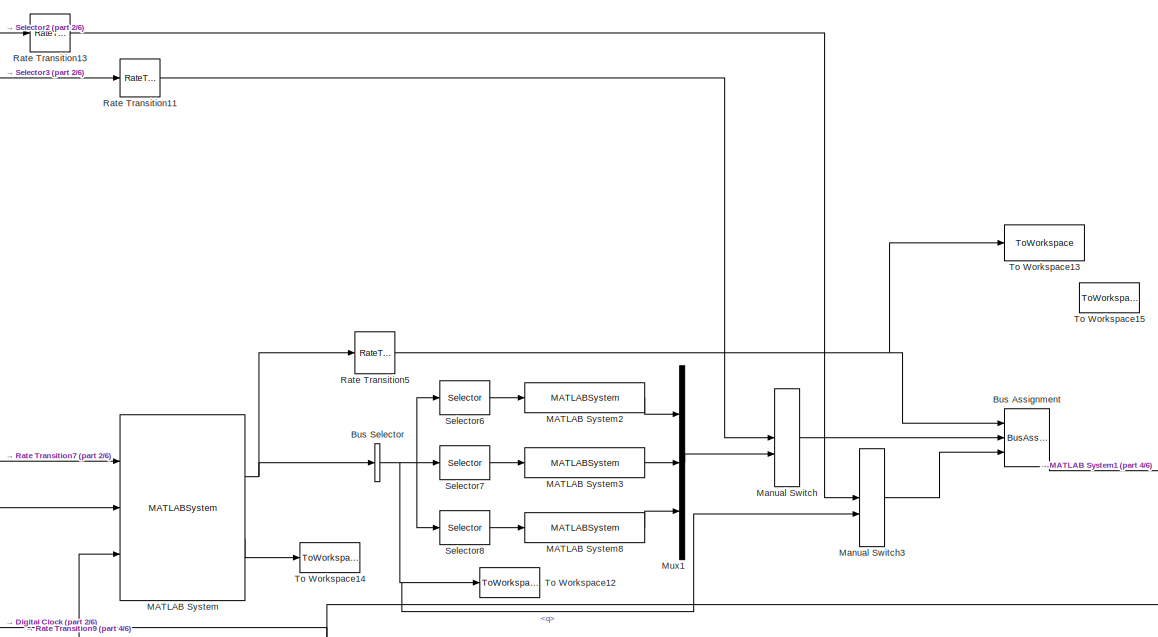
[diagram: root canvas - part 1/6, top center region]
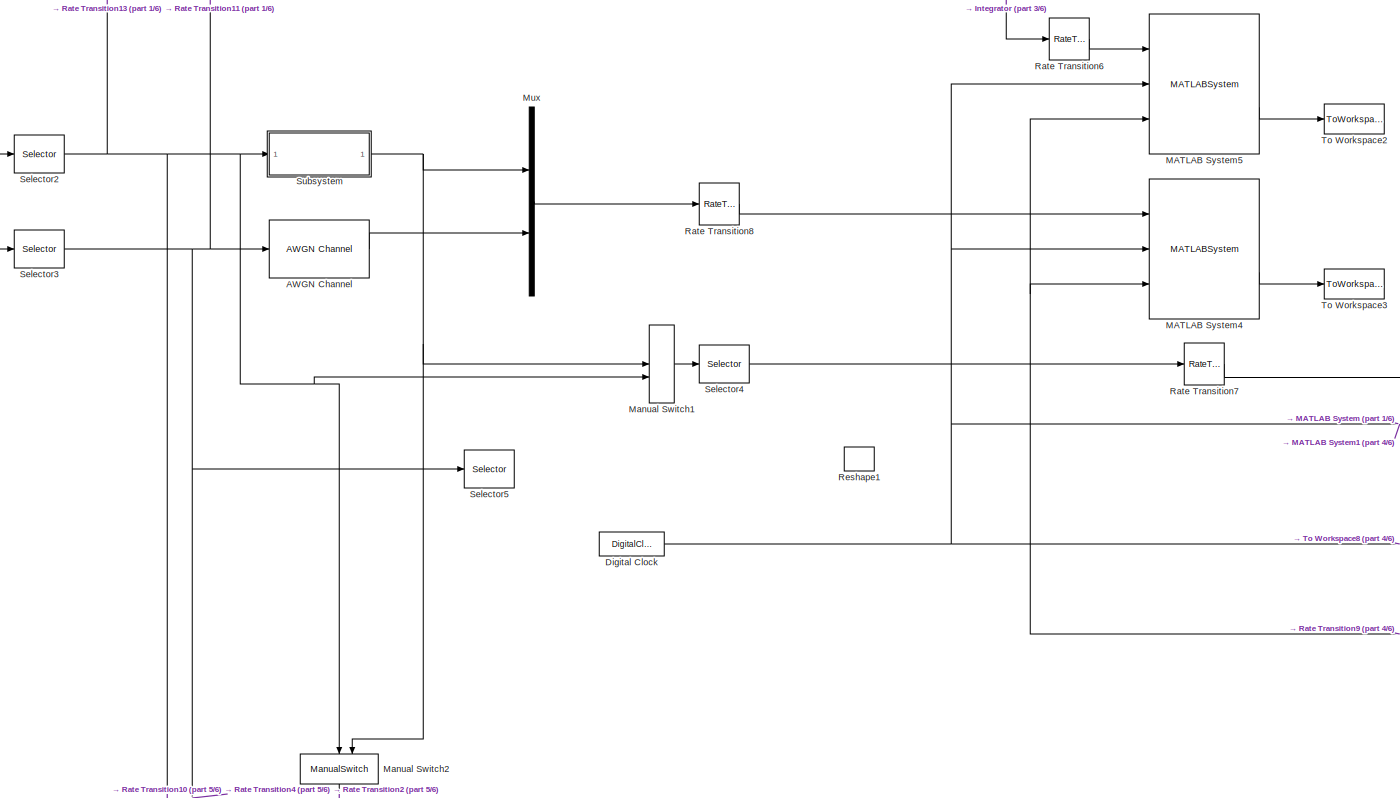
[diagram: root canvas - part 2/6, middle left region]
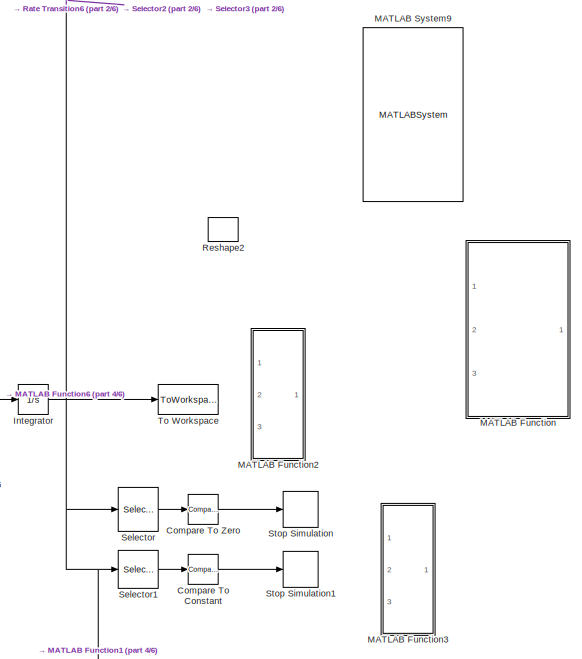
[diagram: root canvas - part 3/6, top right region]
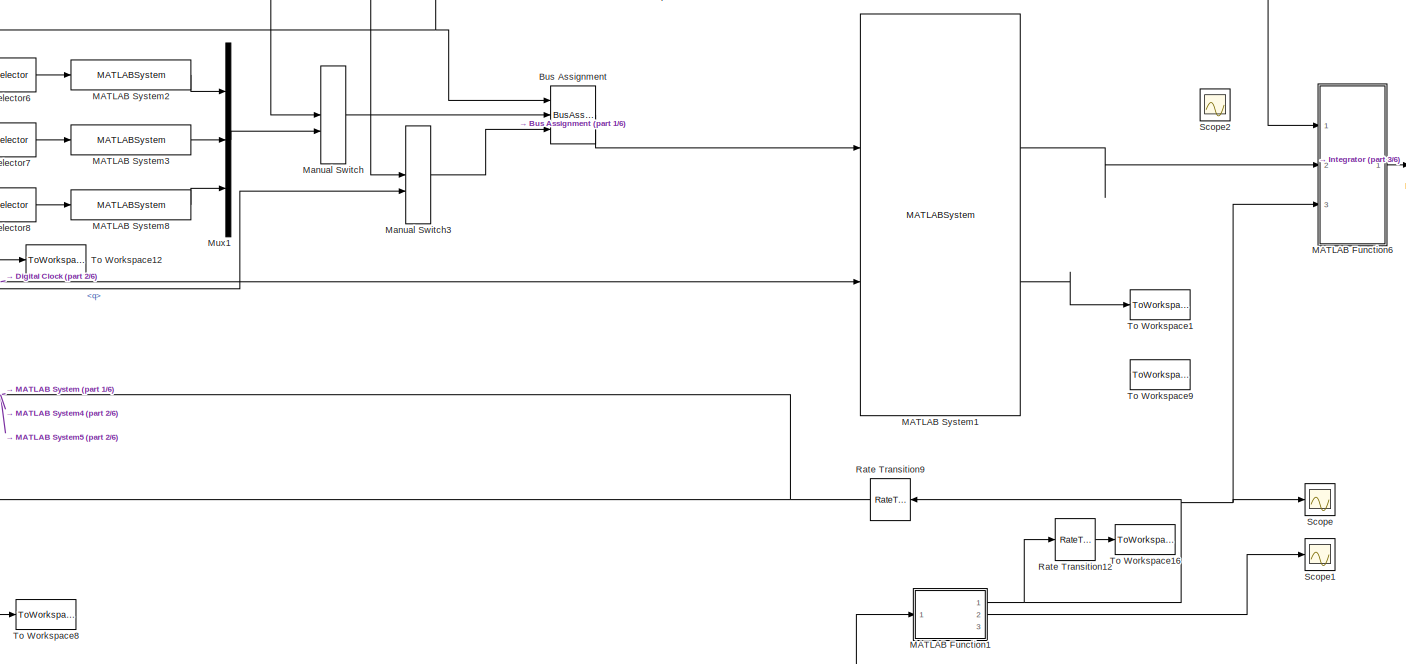
[diagram: root canvas - part 4/6, middle right region]
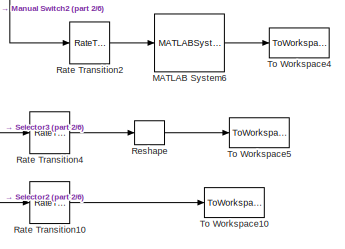
[diagram: root canvas - part 5/6, bottom left region]
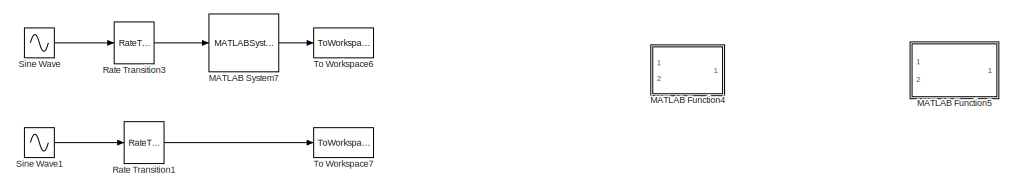
[diagram: root canvas - part 6/6, bottom center region]
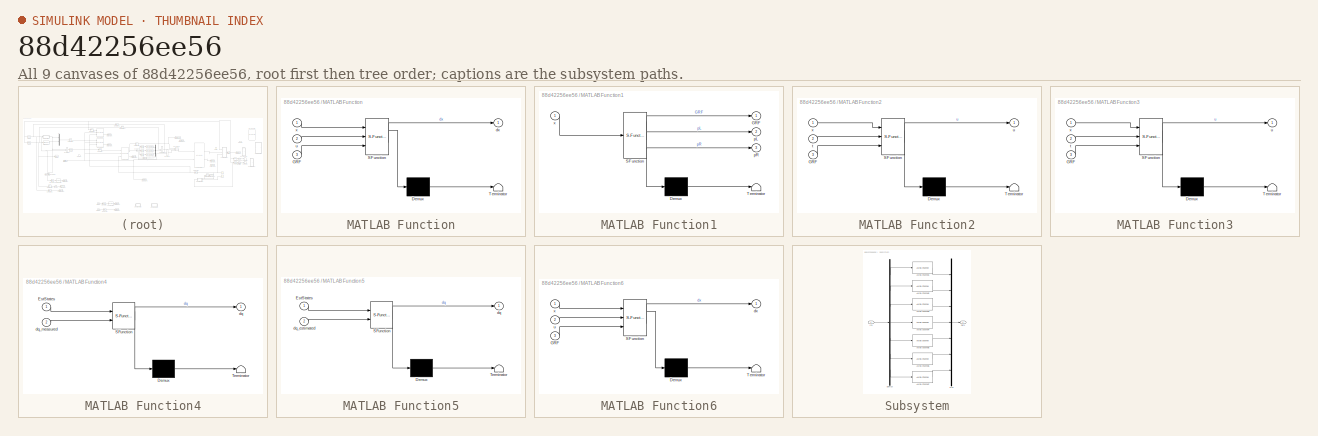
[diagram: thumbnail index - all 9 canvases of the model, root first then tree order]
MODEL slx_88d42256ee56
KIND model
CONFIG AbsTol = auto
CONFIG EnableMultiTasking = off
CONFIG FixedStep = auto
CONFIG InitFcn = SimInit\nPolyRegressionFilterInit\nCustomInit
CONFIG MaxStep = 0.001
CONFIG MinStep = auto
CONFIG RelTol = 1e-3
CONFIG SampleTimeConstraint = Unconstrained
CONFIG Solver = ode45
CONFIG SolverName = ode45
CONFIG StartTime = 0.0
CONFIG StopTime = 50
BLOCK [Reference] AWGN Channel  REF=commchan3/AWGN
Channel
  Ports = [1, 1]
  SourceBlock = commchan3/AWGN\nChannel
  SourceProductBaseCode = CM
  SourceProductName = Communications System Toolbox
  SourceType = AWGN Channel
  UserDataPersistent = on
BLOCK [BusAssignment] Bus Assignment
  AssignedSignals = dq,q
  Ports = [3, 1]
BLOCK [BusSelector] Bus Selector
  OutputAsBus = off
  OutputSignals = q
  Ports = [1, 1]
BLOCK [Reference] Compare To Constant  REF=simulink/Logic and Bit
Operations/Compare
To Constant
  Ports = [1, 1]
  SourceBlock = simulink/Logic and Bit\nOperations/Compare\nTo Constant
  SourceProductBaseCode = SL
  SourceProductName = Simulink
  SourceType = Compare To Constant
BLOCK [Reference] Compare To Zero  REF=simulink/Logic and Bit
Operations/Compare
To Zero
  Ports = [1, 1]
  SourceBlock = simulink/Logic and Bit\nOperations/Compare\nTo Zero
  SourceProductBaseCode = SL
  SourceProductName = Simulink
  SourceType = Compare To Zero
BLOCK [DigitalClock] Digital Clock
  SampleTime = sample_time
BLOCK [Integrator] Integrator
  InitialCondition = IC
  Ports = [1, 1]
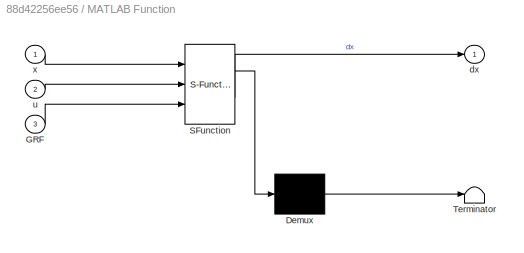
BLOCK [SubSystem] MATLAB Function
  Commented = on
  ErrorFcn = Stateflow.Translate.translate
  PermitHierarchicalResolution = ExplicitOnly
  Ports = [3, 1]
  RequestExecContextInheritance = off
  SFBlockType = MATLAB Function
  TreatAsAtomicUnit = on
  Variant = off
BLOCK [Demux] MATLAB Function/ Demux 
  Outputs = 1
  Ports = [1, 1]
BLOCK [S-Function] MATLAB Function/ SFunction 
  EnableBusSupport = on
  FunctionName = sf_sfun
  PortCounts = [3 2]
  Ports = [3, 2]
  SFcnIsStateOwnerBlock = off
  SFunctionDeploymentMode = off
  Tag = Stateflow S-Function FLWSim_noise_3 2
BLOCK [Terminator] MATLAB Function/ Terminator 
BLOCK [Inport] MATLAB Function/GRF
  IconDisplay = Port number
  Port = 3
BLOCK [Outport] MATLAB Function/dx
  IconDisplay = Port number
BLOCK [Inport] MATLAB Function/u
  IconDisplay = Port number
  Port = 2
BLOCK [Inport] MATLAB Function/x
  IconDisplay = Port number
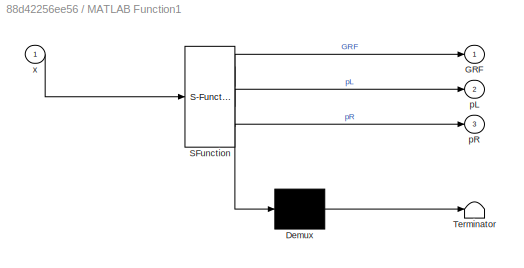
BLOCK [SubSystem] MATLAB Function1
  ErrorFcn = Stateflow.Translate.translate
  PermitHierarchicalResolution = ExplicitOnly
  Ports = [1, 3]
  RequestExecContextInheritance = off
  SFBlockType = MATLAB Function
  TreatAsAtomicUnit = on
  Variant = off
BLOCK [Demux] MATLAB Function1/ Demux 
  Outputs = 1
  Ports = [1, 1]
BLOCK [S-Function] MATLAB Function1/ SFunction 
  EnableBusSupport = on
  FunctionName = sf_sfun
  PortCounts = [1 4]
  Ports = [1, 4]
  SFcnIsStateOwnerBlock = off
  SFunctionDeploymentMode = off
  Tag = Stateflow S-Function FLWSim_noise_3 1
BLOCK [Terminator] MATLAB Function1/ Terminator 
BLOCK [Outport] MATLAB Function1/GRF
  IconDisplay = Port number
BLOCK [Outport] MATLAB Function1/pL
  IconDisplay = Port number
  Port = 2
BLOCK [Outport] MATLAB Function1/pR
  IconDisplay = Port number
  Port = 3
BLOCK [Inport] MATLAB Function1/x
  IconDisplay = Port number
BLOCK [SubSystem] MATLAB Function2
  Commented = on
  ErrorFcn = Stateflow.Translate.translate
  PermitHierarchicalResolution = ExplicitOnly
  Ports = [3, 1]
  RequestExecContextInheritance = off
  SFBlockType = MATLAB Function
  TreatAsAtomicUnit = on
  Variant = off
BLOCK [Demux] MATLAB Function2/ Demux 
  Outputs = 1
  Ports = [1, 1]
BLOCK [S-Function] MATLAB Function2/ SFunction 
  EnableBusSupport = on
  FunctionName = sf_sfun
  PortCounts = [3 2]
  Ports = [3, 2]
  SFcnIsStateOwnerBlock = off
  SFunctionDeploymentMode = off
  Tag = Stateflow S-Function FLWSim_noise_3 3
BLOCK [Terminator] MATLAB Function2/ Terminator 
BLOCK [Inport] MATLAB Function2/GRF
  IconDisplay = Port number
  Port = 3
BLOCK [Inport] MATLAB Function2/t
  IconDisplay = Port number
  Port = 2
BLOCK [Outport] MATLAB Function2/u
  IconDisplay = Port number
BLOCK [Inport] MATLAB Function2/x
  IconDisplay = Port number
BLOCK [SubSystem] MATLAB Function3
  Commented = on
  ErrorFcn = Stateflow.Translate.translate
  PermitHierarchicalResolution = ExplicitOnly
  Ports = [3, 1]
  RequestExecContextInheritance = off
  SFBlockType = MATLAB Function
  TreatAsAtomicUnit = on
  Variant = off
BLOCK [Demux] MATLAB Function3/ Demux 
  Outputs = 1
  Ports = [1, 1]
BLOCK [S-Function] MATLAB Function3/ SFunction 
  EnableBusSupport = on
  FunctionName = sf_sfun
  PortCounts = [3 2]
  Ports = [3, 2]
  SFcnIsStateOwnerBlock = off
  SFunctionDeploymentMode = off
  Tag = Stateflow S-Function FLWSim_noise_3 4
BLOCK [Terminator] MATLAB Function3/ Terminator 
BLOCK [Inport] MATLAB Function3/GRF
  IconDisplay = Port number
  Port = 3
BLOCK [Inport] MATLAB Function3/t
  IconDisplay = Port number
  Port = 2
BLOCK [Outport] MATLAB Function3/u
  IconDisplay = Port number
BLOCK [Inport] MATLAB Function3/x
  IconDisplay = Port number
BLOCK [SubSystem] MATLAB Function4
  Commented = on
  ErrorFcn = Stateflow.Translate.translate
  PermitHierarchicalResolution = ExplicitOnly
  Ports = [2, 1]
  RequestExecContextInheritance = off
  SFBlockType = MATLAB Function
  TreatAsAtomicUnit = on
  Variant = off
BLOCK [Demux] MATLAB Function4/ Demux 
  Outputs = 1
  Ports = [1, 1]
BLOCK [S-Function] MATLAB Function4/ SFunction 
  EnableBusSupport = on
  FunctionName = sf_sfun
  PortCounts = [2 2]
  Ports = [2, 2]
  SFcnIsStateOwnerBlock = off
  SFunctionDeploymentMode = off
  Tag = Stateflow S-Function FLWSim_noise_3 5
BLOCK [Terminator] MATLAB Function4/ Terminator 
BLOCK [Inport] MATLAB Function4/EstStates
  IconDisplay = Port number
BLOCK [Outport] MATLAB Function4/dq
  IconDisplay = Port number
BLOCK [Inport] MATLAB Function4/dq_measured
  IconDisplay = Port number
  Port = 2
BLOCK [SubSystem] MATLAB Function5
  Commented = on
  ErrorFcn = Stateflow.Translate.translate
  PermitHierarchicalResolution = ExplicitOnly
  Ports = [2, 1]
  RequestExecContextInheritance = off
  SFBlockType = MATLAB Function
  TreatAsAtomicUnit = on
  Variant = off
BLOCK [Demux] MATLAB Function5/ Demux 
  Outputs = 1
  Ports = [1, 1]
BLOCK [S-Function] MATLAB Function5/ SFunction 
  EnableBusSupport = on
  FunctionName = sf_sfun
  PortCounts = [2 2]
  Ports = [2, 2]
  SFcnIsStateOwnerBlock = off
  SFunctionDeploymentMode = off
  Tag = Stateflow S-Function FLWSim_noise_3 6
BLOCK [Terminator] MATLAB Function5/ Terminator 
BLOCK [Inport] MATLAB Function5/EstStates
  IconDisplay = Port number
BLOCK [Outport] MATLAB Function5/dq
  IconDisplay = Port number
BLOCK [Inport] MATLAB Function5/dq_estimated
  IconDisplay = Port number
  Port = 2
BLOCK [SubSystem] MATLAB Function6
  ErrorFcn = Stateflow.Translate.translate
  PermitHierarchicalResolution = ExplicitOnly
  Ports = [3, 1]
  RequestExecContextInheritance = off
  SFBlockType = MATLAB Function
  TreatAsAtomicUnit = on
  Variant = off
BLOCK [Demux] MATLAB Function6/ Demux 
  Outputs = 1
  Ports = [1, 1]
BLOCK [S-Function] MATLAB Function6/ SFunction 
  EnableBusSupport = on
  FunctionName = sf_sfun
  PortCounts = [3 2]
  Ports = [3, 2]
  SFcnIsStateOwnerBlock = off
  SFunctionDeploymentMode = off
  Tag = Stateflow S-Function FLWSim_noise_3 7
BLOCK [Terminator] MATLAB Function6/ Terminator 
BLOCK [Inport] MATLAB Function6/GRF
  IconDisplay = Port number
  Port = 3
BLOCK [Outport] MATLAB Function6/dx
  IconDisplay = Port number
BLOCK [Inport] MATLAB Function6/u
  IconDisplay = Port number
  Port = 2
BLOCK [Inport] MATLAB Function6/x
  IconDisplay = Port number
BLOCK [MATLABSystem] MATLAB System
  MaskDisplay = disp('StateEstimator_1');\nport_label('input',1,'q_measured');\nport_label('input',2,'t');\nport_label('input',3,'GRF');\nport_label('output',1,'EstStates');\nport_label('output',2,'q');
  MaskType = StateEstimator_1
  Ports = [3, 2]
  SimulateUsing = Interpreted execution
  System = StateEstimator_1
  T = 0.3
BLOCK [MATLABSystem] MATLAB System1
  MaskDisplay = disp('FLW_Controller_5');\nport_label('input',1,'EstStates');\nport_label('input',2,'t');\nport_label('output',1,'u');\nport_label('output',2,'Data');
  MaskType = FLW_Controller_5
  Ports = [2, 2]
  RegressFilterHistoryLength = history_length
  SimulateUsing = Interpreted execution
  System = FLW_Controller_5
  T = 0.3
  T_sample = sample_time
  cov_dq_estimated = cov_dq_estimated
  cov_q_measured = cov_q_measured
BLOCK [MATLABSystem] MATLAB System2
  MaskDisplay = disp('PolyRegressionFilter');\nport_label('input',1,'q');\nport_label('output',1,'dq');
  MaskType = PolyRegressionFilter
  Ports = [1, 1]
  SimulateUsing = Code generation
  System = PolyRegressionFilter
  delay = RegressionDelay
  dop = dop
  history_length = history_length
  sample_time = sample_time
  signal_dim = 2
BLOCK [MATLABSystem] MATLAB System3
  MaskDisplay = disp('PolyRegressionFilter');\nport_label('input',1,'q');\nport_label('output',1,'dq');
  MaskType = PolyRegressionFilter
  Ports = [1, 1]
  SimulateUsing = Code generation
  System = PolyRegressionFilter
  delay = RegressionDelay
  dop = dop
  history_length = history_length
  sample_time = sample_time
  signal_dim = 1
BLOCK [MATLABSystem] MATLAB System4
  Commented = on
  MaskDisplay = disp('FLW_Controller_3');\nport_label('input',1,'x');\nport_label('input',2,'t');\nport_label('input',3,'GRF');\nport_label('output',1,'u');\nport_label('output',2,'Data');
  MaskType = FLW_Controller_3
  Ports = [3, 2]
  SimulateUsing = Code generation
  System = FLW_Controller_3
  T_sample = sample_time
  cov_dq = cov_dq_estimated
  cov_q = cov_q_measured
BLOCK [MATLABSystem] MATLAB System5
  Commented = on
  MaskDisplay = disp('FLW_Controller_3');\nport_label('input',1,'x');\nport_label('input',2,'t');\nport_label('input',3,'GRF');\nport_label('output',1,'u');\nport_label('output',2,'Data');
  MaskType = FLW_Controller_3
  Ports = [3, 2]
  SimulateUsing = Code generation
  System = FLW_Controller_3
  T_sample = sample_time
  cov_dq = cov_dq_estimated
  cov_q = cov_q_measured
BLOCK [MATLABSystem] MATLAB System6
  MaskDisplay = disp('PolyRegressionFilter');\nport_label('input',1,'q');\nport_label('output',1,'dq');
  MaskType = PolyRegressionFilter
  Ports = [1, 1]
  SimulateUsing = Code generation
  System = PolyRegressionFilter
  delay = RegressionDelay
  dop = dop
  history_length = history_length
  sample_time = sample_time
  signal_dim = 7
BLOCK [MATLABSystem] MATLAB System7
  MaskDisplay = disp('PolyRegressionFilter');\nport_label('input',1,'q');\nport_label('output',1,'dq');
  MaskType = PolyRegressionFilter
  Ports = [1, 1]
  SimulateUsing = Code generation
  System = PolyRegressionFilter
  delay = 20
  dop = dop
  history_length = history_length
  sample_time = sample_time
  signal_dim = 1
BLOCK [MATLABSystem] MATLAB System8
  MaskDisplay = disp('PolyRegressionFilter');\nport_label('input',1,'q');\nport_label('output',1,'dq');
  MaskType = PolyRegressionFilter
  Ports = [1, 1]
  SimulateUsing = Code generation
  System = PolyRegressionFilter
  delay = RegressionDelay
  dop = dop
  history_length = history_length
  sample_time = sample_time
  signal_dim = 4
BLOCK [MATLABSystem] MATLAB System9
  Commented = on
  MaskDisplay = disp('EOM');\nport_label('input',1,'x');\nport_label('input',2,'u');\nport_label('input',3,'GRF');\nport_label('output',1,'dx');
  MaskType = EOM
  Ports = [3, 1]
  SimulateUsing = Interpreted execution
  System = EOM
BLOCK [ManualSwitch] Manual Switch
BLOCK [ManualSwitch] Manual Switch1
  CurrentSetting = 0
BLOCK [ManualSwitch] Manual Switch2
BLOCK [ManualSwitch] Manual Switch3
BLOCK [Mux] Mux
  DisplayOption = bar
  Inputs = 2
  Ports = [2, 1]
BLOCK [Mux] Mux1
  DisplayOption = bar
  Inputs = 3
  Ports = [3, 1]
BLOCK [RateTransition] Rate Transition1
  OutPortSampleTime = sample_time
BLOCK [RateTransition] Rate Transition10
  OutPortSampleTime = sample_time
BLOCK [RateTransition] Rate Transition11
  OutPortSampleTime = sample_time
BLOCK [RateTransition] Rate Transition12
  OutPortSampleTime = sample_time
BLOCK [RateTransition] Rate Transition13
  OutPortSampleTime = sample_time
BLOCK [RateTransition] Rate Transition2
  OutPortSampleTime = sample_time
BLOCK [RateTransition] Rate Transition3
  OutPortSampleTime = sample_time
BLOCK [RateTransition] Rate Transition4
  OutPortSampleTime = sample_time
BLOCK [RateTransition] Rate Transition5
  OutPortSampleTime = sample_time
BLOCK [RateTransition] Rate Transition6
  OutPortSampleTime = sample_time
BLOCK [RateTransition] Rate Transition7
  OutPortSampleTime = sample_time
BLOCK [RateTransition] Rate Transition8
  OutPortSampleTime = sample_time
BLOCK [RateTransition] Rate Transition9
  OutPortSampleTime = sample_time
BLOCK [Reshape] Reshape
  OutputDimensionality = Column vector (2-D)
  Ports = [1, 1]
BLOCK [Reshape] Reshape1
  OutputDimensionality = Column vector (2-D)
  Ports = [1, 1]
BLOCK [Reshape] Reshape2
  Commented = on
  OutputDimensionality = Column vector (2-D)
  Ports = [1, 1]
BLOCK [Scope] Scope
  NumInputPorts = 1
  Ports = [1]
  ScopeSpecificationString = Simulink.scopes.TimeScopeBlockCfg('CurrentConfiguration', extmgr.ConfigurationSet(extmgr.Configuration('Core','General UI',true),extmgr.Configuration('Core','Source UI',true),extmgr.Configuration('Sources','WiredSimulink',true),extmgr.Configuration('Visuals','Time Domain',true,'SerializedDisplays',{struct('MinYLimReal','-3527.8342','MaxYLimReal','2836.7382','YLabelReal','','MinYLimMag','  0.00000'...<+1581ch>
BLOCK [Scope] Scope1
  NumInputPorts = 1
  Ports = [1]
  ScopeSpecificationString = Simulink.scopes.TimeScopeBlockCfg('CurrentConfiguration', extmgr.ConfigurationSet(extmgr.Configuration('Core','General UI',true),extmgr.Configuration('Core','Source UI',true),extmgr.Configuration('Sources','WiredSimulink',true,'DataLoggingVariableName','ScopeData1'),extmgr.Configuration('Visuals','Time Domain',true,'SerializedDisplays',{struct('MinYLimReal','-126.86849','MaxYLimReal','50.32414','Y...<+1484ch>
BLOCK [Scope] Scope2
  NumInputPorts = 1
  Ports = [1]
  ScopeSpecificationString = Simulink.scopes.TimeScopeBlockCfg('CurrentConfiguration', extmgr.ConfigurationSet(extmgr.Configuration('Core','General UI',true),extmgr.Configuration('Core','Source UI',true),extmgr.Configuration('Sources','WiredSimulink',true,'DataLoggingVariableName','ScopeData2'),extmgr.Configuration('Visuals','Time Domain',true,'SerializedDisplays',{struct('MinYLimReal','-2453.87139','MaxYLimReal','1143.79313'...<+1531ch>
BLOCK [Selector] Selector
  IndexOptions = Index vector (dialog)
  Indices = [2]
  InputPortWidth = 14
  OutputSizes = 1
  Ports = [1, 1]
BLOCK [Selector] Selector1
  IndexOptions = Index vector (dialog)
  Indices = [8]
  InputPortWidth = 14
  OutputSizes = 1
  Ports = [1, 1]
BLOCK [Selector] Selector2
  IndexOptions = Index vector (dialog)
  Indices = [1:7]
  InputPortWidth = 14
  OutputSizes = 1
  Ports = [1, 1]
BLOCK [Selector] Selector3
  IndexOptions = Index vector (dialog)
  Indices = [8:14]
  InputPortWidth = 14
  OutputSizes = 1
  Ports = [1, 1]
BLOCK [Selector] Selector4
  IndexOptions = Index vector (dialog)
  Indices = [3:7]
  InputPortWidth = 7
  OutputSizes = 1
  Ports = [1, 1]
BLOCK [Selector] Selector5
  IndexOptions = Index vector (dialog)
  Indices = [3:7]
  InputPortWidth = 7
  OutputSizes = 1
  Ports = [1, 1]
BLOCK [Selector] Selector6
  IndexOptions = Index vector (dialog)
  Indices = [1:2]
  InputPortWidth = 7
  OutputSizes = 1
  Ports = [1, 1]
BLOCK [Selector] Selector7
  IndexOptions = Index vector (dialog)
  Indices = [3]
  InputPortWidth = 7
  OutputSizes = 1
  Ports = [1, 1]
BLOCK [Selector] Selector8
  IndexOptions = Index vector (dialog)
  Indices = [4:7]
  InputPortWidth = 7
  OutputSizes = 1
  Ports = [1, 1]
BLOCK [Sin] Sine Wave
  Frequency = 10
  Ports = [0, 1]
  SampleTime = 0
BLOCK [Sin] Sine Wave1
  Amplitude = 10
  Frequency = 10
  Phase = pi/2
  Ports = [0, 1]
  SampleTime = 0
BLOCK [Stop] Stop Simulation
BLOCK [Stop] Stop Simulation1
BLOCK [SubSystem] Subsystem
  Ports = [1, 1]
  RequestExecContextInheritance = off
  Variant = off
BLOCK [Reference] Subsystem/AWGN Channel1  REF=commchan3/AWGN
Channel
  Ports = [1, 1]
  SourceBlock = commchan3/AWGN\nChannel
  SourceProductBaseCode = CM
  SourceProductName = Communications System Toolbox
  SourceType = AWGN Channel
  UserDataPersistent = on
BLOCK [Reference] Subsystem/AWGN Channel2  REF=commchan3/AWGN
Channel
  Ports = [1, 1]
  SourceBlock = commchan3/AWGN\nChannel
  SourceProductBaseCode = CM
  SourceProductName = Communications System Toolbox
  SourceType = AWGN Channel
  UserDataPersistent = on
BLOCK [Reference] Subsystem/AWGN Channel3  REF=commchan3/AWGN
Channel
  Ports = [1, 1]
  SourceBlock = commchan3/AWGN\nChannel
  SourceProductBaseCode = CM
  SourceProductName = Communications System Toolbox
  SourceType = AWGN Channel
  UserDataPersistent = on
BLOCK [Reference] Subsystem/AWGN Channel4  REF=commchan3/AWGN
Channel
  Ports = [1, 1]
  SourceBlock = commchan3/AWGN\nChannel
  SourceProductBaseCode = CM
  SourceProductName = Communications System Toolbox
  SourceType = AWGN Channel
  UserDataPersistent = on
BLOCK [Reference] Subsystem/AWGN Channel5  REF=commchan3/AWGN
Channel
  Ports = [1, 1]
  SourceBlock = commchan3/AWGN\nChannel
  SourceProductBaseCode = CM
  SourceProductName = Communications System Toolbox
  SourceType = AWGN Channel
  UserDataPersistent = on
BLOCK [Reference] Subsystem/AWGN Channel6  REF=commchan3/AWGN
Channel
  Ports = [1, 1]
  SourceBlock = commchan3/AWGN\nChannel
  SourceProductBaseCode = CM
  SourceProductName = Communications System Toolbox
  SourceType = AWGN Channel
  UserDataPersistent = on
BLOCK [Reference] Subsystem/AWGN Channel7  REF=commchan3/AWGN
Channel
  Ports = [1, 1]
  SourceBlock = commchan3/AWGN\nChannel
  SourceProductBaseCode = CM
  SourceProductName = Communications System Toolbox
  SourceType = AWGN Channel
  UserDataPersistent = on
BLOCK [Demux] Subsystem/Demux
  DisplayOption = bar
  Outputs = 7
  Ports = [1, 7]
BLOCK [Inport] Subsystem/In1
  IconDisplay = Port number
BLOCK [Mux] Subsystem/Mux
  DisplayOption = bar
  Inputs = 7
  Ports = [7, 1]
BLOCK [Outport] Subsystem/Out1
  IconDisplay = Port number
BLOCK [ToWorkspace] To Workspace
  FixptAsFi = on
  MaxDataPoints = inf
  Ports = [1]
  SampleTime = -1
  Save2DSignal = 3-D array (concatenate along third dimension)
  VariableName = X_states
BLOCK [ToWorkspace] To Workspace1
  FixptAsFi = on
  MaxDataPoints = inf
  Ports = [1]
  SampleTime = -1
  Save2DSignal = 3-D array (concatenate along third dimension)
  SaveFormat = Timeseries
  VariableName = Data
BLOCK [ToWorkspace] To Workspace10
  FixptAsFi = on
  MaxDataPoints = inf
  Ports = [1]
  SampleTime = -1
  Save2DSignal = 3-D array (concatenate along third dimension)
  SaveFormat = Timeseries
  VariableName = true_q
BLOCK [ToWorkspace] To Workspace12
  FixptAsFi = on
  MaxDataPoints = inf
  Ports = [1]
  SampleTime = -1
  Save2DSignal = 3-D array (concatenate along third dimension)
  SaveFormat = Timeseries
  VariableName = test_q_2
BLOCK [ToWorkspace] To Workspace13
  FixptAsFi = on
  MaxDataPoints = inf
  Ports = [1]
  SampleTime = -1
  Save2DSignal = 3-D array (concatenate along third dimension)
  SaveFormat = Timeseries
  VariableName = EstStates
BLOCK [ToWorkspace] To Workspace14
  FixptAsFi = on
  MaxDataPoints = inf
  Ports = [1]
  SampleTime = -1
  Save2DSignal = 3-D array (concatenate along third dimension)
  SaveFormat = Timeseries
  VariableName = q_test1
BLOCK [ToWorkspace] To Workspace15
  FixptAsFi = on
  MaxDataPoints = inf
  Ports = [1]
  SampleTime = -1
  Save2DSignal = 3-D array (concatenate along third dimension)
  SaveFormat = Timeseries
  VariableName = q_test2
BLOCK [ToWorkspace] To Workspace16
  FixptAsFi = on
  MaxDataPoints = inf
  Ports = [1]
  SampleTime = -1
  Save2DSignal = 3-D array (concatenate along third dimension)
  SaveFormat = Timeseries
  VariableName = GRF
BLOCK [ToWorkspace] To Workspace2
  FixptAsFi = on
  MaxDataPoints = inf
  Ports = [1]
  SampleTime = -1
  Save2DSignal = 3-D array (concatenate along third dimension)
  SaveFormat = Timeseries
  VariableName = Data_perfect
BLOCK [ToWorkspace] To Workspace3
  FixptAsFi = on
  MaxDataPoints = inf
  Ports = [1]
  SampleTime = -1
  Save2DSignal = 3-D array (concatenate along third dimension)
  SaveFormat = Timeseries
  VariableName = Data_noise
BLOCK [ToWorkspace] To Workspace4
  FixptAsFi = on
  MaxDataPoints = inf
  Ports = [1]
  SampleTime = -1
  Save2DSignal = 3-D array (concatenate along third dimension)
  SaveFormat = Timeseries
  VariableName = test_dq
BLOCK [ToWorkspace] To Workspace5
  FixptAsFi = on
  MaxDataPoints = inf
  Ports = [1]
  SampleTime = -1
  Save2DSignal = 3-D array (concatenate along third dimension)
  SaveFormat = Timeseries
  VariableName = true_dq
BLOCK [ToWorkspace] To Workspace6
  FixptAsFi = on
  MaxDataPoints = inf
  Ports = [1]
  SampleTime = -1
  Save2DSignal = 3-D array (concatenate along third dimension)
  SaveFormat = Timeseries
  VariableName = test_dsine
BLOCK [ToWorkspace] To Workspace7
  FixptAsFi = on
  MaxDataPoints = inf
  Ports = [1]
  SampleTime = -1
  Save2DSignal = 3-D array (concatenate along third dimension)
  SaveFormat = Timeseries
  VariableName = true_dsine
BLOCK [ToWorkspace] To Workspace8
  FixptAsFi = on
  MaxDataPoints = inf
  Ports = [1]
  SampleTime = -1
  Save2DSignal = 2-D array (concatenate along first dimension)
  VariableName = time_seq
BLOCK [ToWorkspace] To Workspace9
  Commented = on
  FixptAsFi = on
  MaxDataPoints = inf
  Ports = [1]
  SampleTime = -1
  Save2DSignal = 3-D array (concatenate along third dimension)
  SaveFormat = Timeseries
  VariableName = origin_pos
LINE AWGN Channel:1 -> Mux:2
LINE Bus Assignment:1 -> MATLAB System1:1
NET Bus Selector:1 -> Manual Switch3:2, Selector6:1, Selector7:1, Selector8:1, To Workspace12:1
LINE Compare To Constant:1 -> Stop Simulation1:1
LINE Compare To Zero:1 -> Stop Simulation:1
NET Digital Clock:1 -> MATLAB System1:2, MATLAB System4:2, MATLAB System5:2, MATLAB System:2, To Workspace8:1
NET Integrator:1 -> MATLAB Function1:1, MATLAB Function6:1, Rate Transition6:1, Selector1:1, Selector2:1, Selector3:1, Selector:1, To Workspace:1
NET MATLAB Function1:1 -> MATLAB Function6:3, Rate Transition12:1, Rate Transition9:1, Scope:1
LINE MATLAB Function1:2 -> Scope1:1
LINE MATLAB Function6:1 -> Integrator:1
LINE MATLAB System1:1 -> MATLAB Function6:2
LINE MATLAB System1:2 -> To Workspace1:1
LINE MATLAB System2:1 -> Mux1:1
LINE MATLAB System3:1 -> Mux1:2
LINE MATLAB System4:2 -> To Workspace3:1
LINE MATLAB System5:2 -> To Workspace2:1
LINE MATLAB System6:1 -> To Workspace4:1
LINE MATLAB System7:1 -> To Workspace6:1
LINE MATLAB System8:1 -> Mux1:3
NET MATLAB System:1 -> Bus Selector:1, Rate Transition5:1
LINE MATLAB System:2 -> To Workspace14:1
LINE Manual Switch1:1 -> Selector4:1
LINE Manual Switch2:1 -> Rate Transition2:1
LINE Manual Switch3:1 -> Bus Assignment:3
LINE Manual Switch:1 -> Bus Assignment:2
LINE Mux1:1 -> Manual Switch:2
LINE Mux:1 -> Rate Transition8:1
LINE Rate Transition10:1 -> To Workspace10:1
LINE Rate Transition11:1 -> Manual Switch:1
LINE Rate Transition12:1 -> To Workspace16:1
LINE Rate Transition13:1 -> Manual Switch3:1
LINE Rate Transition1:1 -> To Workspace7:1
LINE Rate Transition2:1 -> MATLAB System6:1
LINE Rate Transition3:1 -> MATLAB System7:1
LINE Rate Transition4:1 -> Reshape:1
NET Rate Transition5:1 -> Bus Assignment:1, To Workspace13:1
LINE Rate Transition6:1 -> MATLAB System5:1
LINE Rate Transition7:1 -> MATLAB System:1
LINE Rate Transition8:1 -> MATLAB System4:1
NET Rate Transition9:1 -> MATLAB System4:3, MATLAB System5:3, MATLAB System:3
LINE Reshape:1 -> To Workspace5:1
LINE Selector1:1 -> Compare To Constant:1
NET Selector2:1 -> Manual Switch1:2, Manual Switch2:1, Rate Transition10:1, Rate Transition13:1, Subsystem:1
NET Selector3:1 -> AWGN Channel:1, Rate Transition11:1, Rate Transition4:1, Selector5:1
LINE Selector4:1 -> Rate Transition7:1
LINE Selector6:1 -> MATLAB System2:1
LINE Selector7:1 -> MATLAB System3:1
LINE Selector8:1 -> MATLAB System8:1
LINE Selector:1 -> Compare To Zero:1
LINE Sine Wave1:1 -> Rate Transition1:1
LINE Sine Wave:1 -> Rate Transition3:1
LINE Subsystem/AWGN Channel1:1 -> Subsystem/Mux:1
LINE Subsystem/AWGN Channel2:1 -> Subsystem/Mux:2
LINE Subsystem/AWGN Channel3:1 -> Subsystem/Mux:3
LINE Subsystem/AWGN Channel4:1 -> Subsystem/Mux:4
LINE Subsystem/AWGN Channel5:1 -> Subsystem/Mux:5
LINE Subsystem/AWGN Channel6:1 -> Subsystem/Mux:6
LINE Subsystem/AWGN Channel7:1 -> Subsystem/Mux:7
LINE Subsystem/Demux:1 -> Subsystem/AWGN Channel1:1
LINE Subsystem/Demux:2 -> Subsystem/AWGN Channel2:1
LINE Subsystem/Demux:3 -> Subsystem/AWGN Channel3:1
LINE Subsystem/Demux:4 -> Subsystem/AWGN Channel4:1
LINE Subsystem/Demux:5 -> Subsystem/AWGN Channel5:1
LINE Subsystem/Demux:6 -> Subsystem/AWGN Channel6:1
LINE Subsystem/Demux:7 -> Subsystem/AWGN Channel7:1
LINE Subsystem/In1:1 -> Subsystem/Demux:1
LINE Subsystem/Mux:1 -> Subsystem/Out1:1
NET Subsystem:1 -> Manual Switch1:1, Manual Switch2:2, Mux:1
note: NET lines group one-source signal fan-out (src -> all destinations, sorted); 1:1 wires keep LINE
CHART MATLAB Function1 states=1 transitions=1
  STATE_LABEL 'eML_blk_kernel()'
  STATE_LABEL 'SCRIPT:\nfunction [GRF,pL,pR] = fcn(x)\nstiffness_v = 60000;\ndamping_v = 1000;\ndamping_h = 10000;\nFC = 10; % Friction Cone\nq = x(1:7);\ndq = x(8:14);\nGRF= zeros(6,1);\n\npL = p_LeftToe(q);\npR = p_RightToe(q);\nvL = Jp_LeftToe(q)*dq;\nvR = Jp_RightToe(q)*dq;\n\n\n\nif pL(3)<0\n    GRF_Lx = -damping_h*vL(1);\n    GRF_Lz = -stiffness_v*pL(3)-damping_v*vL(3);\n    GRF(1) = GRF_Lx;\n    GRF(3) = GRF_Lz;\nend\n\nif pR(3)...<+289ch>'
CHART MATLAB Function states=1 transitions=1
  STATE_LABEL 'eML_blk_kernel()'
  STATE_LABEL "SCRIPT:\nfunction dx = ContinuousModel(x,u,GRF)\ndx = zeros(size(x));\nq = x(1:7);\ndq = x(8:end);\n\nM = InertiaMatrix(q);\nC = CoriolisTerm(q,dq);\nG = GravityVector(q);\nB = [zeros(3,4);eye(4)];\n\nJgL = Jp_LeftToe(q);\nJgR = Jp_RightToe(q);\nJg = [JgL;JgR];\n\nddq = M^-1*(-C-G+B*u+Jg'*GRF);\n\ndx = [dq;ddq];\n\nend\n"
CHART MATLAB Function2 states=1 transitions=1
  STATE_LABEL 'eML_blk_kernel()'
  STATE_LABEL 'SCRIPT:\nfunction u = walk_in_place(x,t,GRF)\nq = x(1:7);\ndq = x(8:14);\n% Let the output be torso angle, hip height and x,z of swing feet.\nT = 0.4; % walking period\nKd = 50;\nKp = 400;\ns = rem(t,T)/T;\nds = 1/T;\n\nif mod(fix(t/T),2)\n    stanceLeg = 1;\nelse\n    stanceLeg = -1;\nend\n    \n\n\nhr= [-pi/6;0.6;0;(s-0.5)^2+0.35];\ndhr = [0;0;0;2*(s-0.5)*ds];\nddhr = [0;0;0;2*ds^2];\n\np_LT = p_LeftToe(q);\np_RT = p_R...<+1551ch>'
CHART MATLAB Function3 states=1 transitions=1
  STATE_LABEL 'eML_blk_kernel()'
  STATE_LABEL 'SCRIPT:\nfunction u = controller(x,t,GRF)\nq = x(1:7);\ndq = x(8:14);\n% Let the output be torso angle, com height and delta x,delta z of swing\n% feet and com. delta = p_com - p_swfeet.\nT = 0.4; % walking period\nKd = 50;\nKp = 400;\ns = rem(t,T)/T;\nds = 1/T;\n\nif mod(fix(t/T),2)==1 && GRF(6)>100\n    stanceLeg = 1;\nelseif mod(fix(t/T),2)==1 && GRF(6)<=100\n    stanceLeg = -1;\nelseif mod(fix(t/T),2) == 0 &&...<+1693ch>'
CHART MATLAB Function4 states=1 transitions=1
  STATE_LABEL 'eML_blk_kernel()'
  STATE_LABEL 'SCRIPT:\nfunction dq = fcn(EstStates,dq_measured)\nq = EstStates.q;\nq_pre = [0;0;q(3:7)];\ndq_pre = [0;0;dq_measured(3:7)];\nJp_LT_pre = Jp_LeftToe(q_pre);\nJp_RT_pre = Jp_RightToe(q_pre);\nrv_Hip2LT = -Jp_LT_pre*dq_pre;\nrv_Hip2RT = -Jp_RT_pre*dq_pre;\nif EstStates.stanceLeg == -1\n    origin_vel = rv_Hip2LT;\nelse\n    origin_vel = rv_Hip2RT;\nend\ndq = [origin_vel([1,3]); dq_pre([3:7])];\n'
CHART MATLAB Function5 states=1 transitions=1
  STATE_LABEL 'eML_blk_kernel()'
  STATE_LABEL 'SCRIPT:\nfunction dq = fcn(EstStates,dq_estimated)\nq = EstStates.q;\nq_pre = [0;0;q(3:7)];\ndq_pre = [0;0;dq_estimated(3:7)];\nJp_LT_pre = Jp_LeftToe(q_pre);\nJp_RT_pre = Jp_RightToe(q_pre);\nrv_Hip2LT = -Jp_LT_pre*dq_pre;\nrv_Hip2RT = -Jp_RT_pre*dq_pre;\nif EstStates.stanceLeg == -1\n    origin_vel = rv_Hip2LT;\nelse\n    origin_vel = rv_Hip2RT;\nend\ndq = [origin_vel([1,3]); dq_pre([3:7])];\n'
CHART MATLAB Function6 states=1 transitions=1
  STATE_LABEL 'eML_blk_kernel()'
  STATE_LABEL "SCRIPT:\nfunction dx = ContinuousModel(x,u,GRF)\ndx = zeros(size(x));\nq = x(1:7);\ndq = x(8:end);\n\nM = InertiaMatrix(q);\nC = CoriolisTerm(q,dq);\nG = GravityVector(q);\nB = [zeros(3,4);eye(4)];\n\nJgL = Jp_LeftToe(q);\nJgR = Jp_RightToe(q);\nJg = [JgL;JgR];\n\nddq = M^-1*(-C-G+B*u+Jg'*GRF);\n\ndx = [dq;ddq];\n\nend\n"
